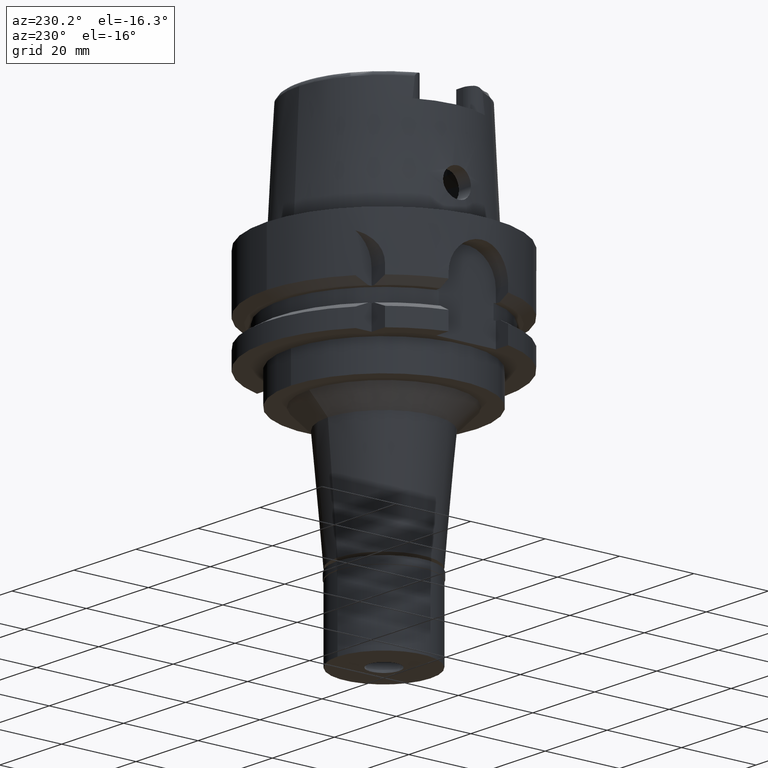
[diagram: clean part render]
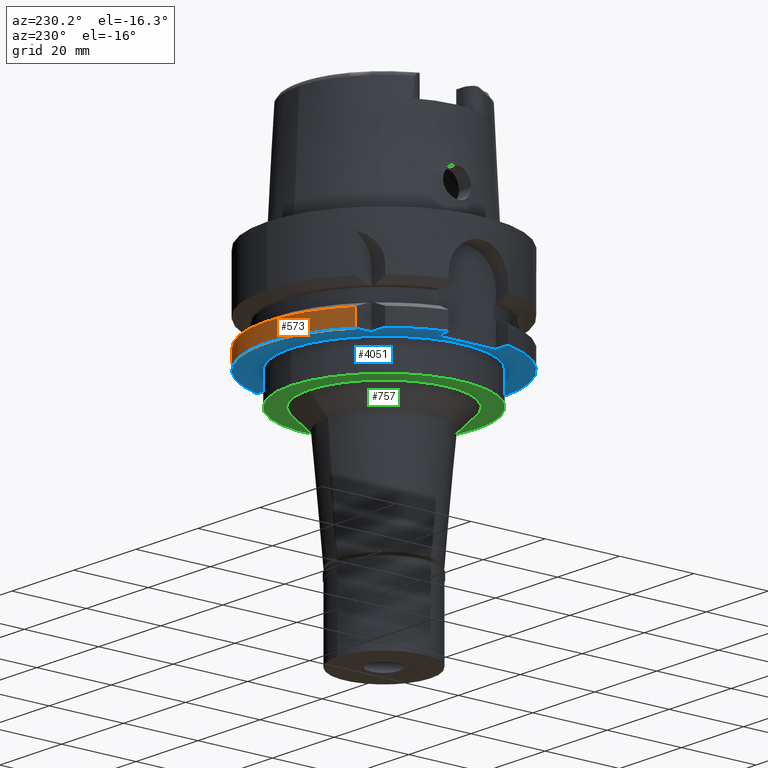
[diagram: same view with three faces highlighted in distinct colors, each labeled with its STEP entity id]
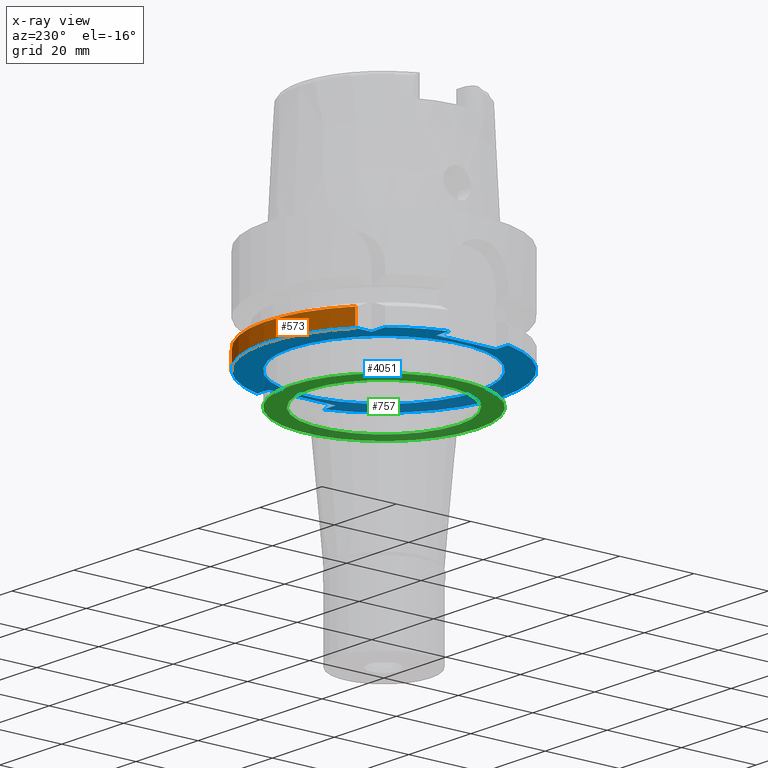
[diagram: x-ray of the same camera — body ghosted, the three highlighted faces saturated]
A machine part, auxiliary view with three faces highlighted in distinct colors.
The next image is the same camera in x-ray (body ghosted, the three faces saturated) — at least one of them is partly hidden behind the body in this view.
Their STEP definitions:

[orange] entity #573 — the highlighted cylindrical surface (partial cylindrical patch) has radius 31.5 mm, axis along (0, 0, 1).
#376 = AXIS2_PLACEMENT_3D ( 'NONE', #3801, #3368, #3426 ) ;
#381 = CYLINDRICAL_SURFACE ( 'NONE', #840, 31.50000000000000000 ) ;
#480 = VERTEX_POINT ( 'NONE', #1887 ) ;
#559 = AXIS2_PLACEMENT_3D ( 'NONE', #2870, #2449, #4980 ) ;
#573 = ADVANCED_FACE ( 'NONE', ( #1745 ), #381, .T. ) ;
#840 = AXIS2_PLACEMENT_3D ( 'NONE', #1269, #4766, #3886 ) ;
#843 = ORIENTED_EDGE ( 'NONE', *, *, #926, .F. ) ;
#878 = LINE ( 'NONE', #2596, #5137 ) ;
#926 = EDGE_CURVE ( 'NONE', #4171, #3962, #5320, .T. ) ;
#1202 = EDGE_CURVE ( 'NONE', #4171, #480, #5459, .T. ) ;
#1269 = CARTESIAN_POINT ( 'NONE',  ( 0.0000000000000000000, 0.0000000000000000000, 0.0000000000000000000 ) ) ;
#1343 = DIRECTION ( 'NONE',  ( -4.472268863052942936E-08, 1.500047548326979534E-07, 0.9999999999999876765 ) ) ;
#1367 = CARTESIAN_POINT ( 'NONE',  ( -20.00000000000000000, 24.33618704727999926, -26.00000000000000000 ) ) ;
#1627 = ORIENTED_EDGE ( 'NONE', *, *, #1202, .T. ) ;
#1693 = ORIENTED_EDGE ( 'NONE', *, *, #3546, .T. ) ;
#1745 = FACE_OUTER_BOUND ( 'NONE', #4511, .T. ) ;
#1887 = CARTESIAN_POINT ( 'NONE',  ( 30.18691748951999898, 9.000000693396000173, -21.37750466754000200 ) ) ;
#1898 = CARTESIAN_POINT ( 'NONE',  ( 30.18691769625000276, 9.000000000000000000, -26.00000000000000000 ) ) ;
#1977 = EDGE_CURVE ( 'NONE', #4406, #480, #878, .T. ) ;
#2449 = DIRECTION ( 'NONE',  ( 0.0000000000000000000, 0.0000000000000000000, -1.000000000000000000 ) ) ;
#2470 = CARTESIAN_POINT ( 'NONE',  ( -20.00000000000000000, 24.33618704727999926, -26.00000000000000000 ) ) ;
#2596 = CARTESIAN_POINT ( 'NONE',  ( 30.18691769625000276, 9.000000000000000000, -26.00000000000000000 ) ) ;
#2870 = CARTESIAN_POINT ( 'NONE',  ( 0.0000000000000000000, 0.0000000000000000000, -21.37749907476000288 ) ) ;
#3368 = DIRECTION ( 'NONE',  ( 0.0000000000000000000, 0.0000000000000000000, 1.000000000000000000 ) ) ;
#3426 = DIRECTION ( 'NONE',  ( 0.0000000000000000000, 1.000000000000000000, 0.0000000000000000000 ) ) ;
#3546 = EDGE_CURVE ( 'NONE', #4406, #3962, #3734, .T. ) ;
#3734 = CIRCLE ( 'NONE', #376, 31.50000000000000000 ) ;
#3801 = CARTESIAN_POINT ( 'NONE',  ( 0.0000000000000000000, 0.0000000000000000000, -26.00000000000000000 ) ) ;
#3886 = DIRECTION ( 'NONE',  ( 0.0000000000000000000, 1.000000000000000000, 0.0000000000000000000 ) ) ;
#3962 = VERTEX_POINT ( 'NONE', #2470 ) ;
#3984 = CARTESIAN_POINT ( 'NONE',  ( -20.00001377820999693, 24.33617572402999940, -21.37754845249999747 ) ) ;
#4171 = VERTEX_POINT ( 'NONE', #3984 ) ;
#4406 = VERTEX_POINT ( 'NONE', #1898 ) ;
#4453 = CARTESIAN_POINT ( 'NONE',  ( -20.00000000000000000, 24.33617949844698458, -22.91836563500000068 ) ) ;
#4511 = EDGE_LOOP ( 'NONE', ( #1627, #5393, #1693, #843 ) ) ;
#4766 = DIRECTION ( 'NONE',  ( 0.0000000000000000000, 0.0000000000000000000, 1.000000000000000000 ) ) ;
#4895 = CARTESIAN_POINT ( 'NONE',  ( -20.00001377820999693, 24.33617572402999940, -21.37754845249999747 ) ) ;
#4980 = DIRECTION ( 'NONE',  ( -0.6349206349206079070, 0.7725773665802099233, 0.0000000000000000000 ) ) ;
#5137 = VECTOR ( 'NONE', #1343, 1000.000000000000114 ) ;
#5317 = CARTESIAN_POINT ( 'NONE',  ( -20.00000000000000000, 24.33618327286396621, -24.45918281749999679 ) ) ;
#5320 = B_SPLINE_CURVE_WITH_KNOTS ( 'NONE', 3,
 ( #4895, #4453, #5317, #1367 ),
 .UNSPECIFIED., .F., .F.,
 ( 4, 4 ),
 ( 0.0000000000000000000, 1.000000000000000000 ),
 .UNSPECIFIED. ) ;
#5393 = ORIENTED_EDGE ( 'NONE', *, *, #1977, .F. ) ;
#5459 = CIRCLE ( 'NONE', #559, 31.50000000000000711 ) ;

[blue] entity #4051 — the highlighted planar face has unit normal (0, 0, 1).
#14 = VECTOR ( 'NONE', #2503, 1000.000000000000000 ) ;
#48 = CIRCLE ( 'NONE', #1769, 25.00000000000000000 ) ;
#63 = DIRECTION ( 'NONE',  ( 0.0000000000000000000, 0.0000000000000000000, 1.000000000000000000 ) ) ;
#96 = VERTEX_POINT ( 'NONE', #971 ) ;
#143 = LINE ( 'NONE', #3549, #4004 ) ;
#197 = AXIS2_PLACEMENT_3D ( 'NONE', #1415, #63, #4831 ) ;
#310 = CARTESIAN_POINT ( 'NONE',  ( 0.0000000000000000000, 0.0000000000000000000, -26.00000000000000000 ) ) ;
#339 = DIRECTION ( 'NONE',  ( 0.0000000000000000000, 1.000000000000000000, 0.0000000000000000000 ) ) ;
#347 = ORIENTED_EDGE ( 'NONE', *, *, #3546, .F. ) ;
#370 = LINE ( 'NONE', #2113, #576 ) ;
#376 = AXIS2_PLACEMENT_3D ( 'NONE', #3801, #3368, #3426 ) ;
#427 = DIRECTION ( 'NONE',  ( 0.0000000000000000000, 0.0000000000000000000, 1.000000000000000000 ) ) ;
#456 = CARTESIAN_POINT ( 'NONE',  ( -30.46719547316000032, 8.000000000000000000, -26.00000000000000000 ) ) ;
#511 = DIRECTION ( 'NONE',  ( 0.0000000000000000000, 0.0000000000000000000, 1.000000000000000000 ) ) ;
#526 = CARTESIAN_POINT ( 'NONE',  ( -26.50000000000000000, -8.000000000000000000, -26.00000000000000000 ) ) ;
#576 = VECTOR ( 'NONE', #5569, 1000.000000000000000 ) ;
#635 = VERTEX_POINT ( 'NONE', #2621 ) ;
#637 = CARTESIAN_POINT ( 'NONE',  ( -20.00000000000000000, 20.00000000000000000, -26.00000000000000000 ) ) ;
#717 = DIRECTION ( 'NONE',  ( 0.0000000000000000000, 0.0000000000000000000, -1.000000000000000000 ) ) ;
#720 = CARTESIAN_POINT ( 'NONE',  ( -26.50000000000000000, 8.000000000000000000, -26.00000000000000000 ) ) ;
#730 = LINE ( 'NONE', #818, #1594 ) ;
#747 = LINE ( 'NONE', #720, #14 ) ;
#792 = EDGE_CURVE ( 'NONE', #635, #4406, #143, .T. ) ;
#805 = DIRECTION ( 'NONE',  ( 0.0000000000000000000, -1.000000000000000000, 0.0000000000000000000 ) ) ;
#817 = DIRECTION ( 'NONE',  ( -1.000000000000000000, -8.686570378870999660E-14, 0.0000000000000000000 ) ) ;
#818 = CARTESIAN_POINT ( 'NONE',  ( -26.50000000000000000, -8.000000000000000000, -26.00000000000000000 ) ) ;
#894 = PLANE ( 'NONE',  #2642 ) ;
#917 = DIRECTION ( 'NONE',  ( 1.000000000000000000, 0.0000000000000000000, 0.0000000000000000000 ) ) ;
#971 = CARTESIAN_POINT ( 'NONE',  ( 0.0000000000000000000, 25.00000000000000000, -26.00000000000000000 ) ) ;
#1056 = EDGE_CURVE ( 'NONE', #3159, #4622, #3787, .T. ) ;
#1094 = LINE ( 'NONE', #637, #3121 ) ;
#1154 = DIRECTION ( 'NONE',  ( 1.000000000000000000, 6.889739586341000002E-14, 0.0000000000000000000 ) ) ;
#1313 = LINE ( 'NONE', #3571, #4798 ) ;
#1415 = CARTESIAN_POINT ( 'NONE',  ( 0.0000000000000000000, 0.0000000000000000000, -26.00000000000000000 ) ) ;
#1429 = EDGE_LOOP ( 'NONE', ( #5458, #3660 ) ) ;
#1451 = VECTOR ( 'NONE', #1154, 1000.000000000000000 ) ;
#1594 = VECTOR ( 'NONE', #5524, 1000.000000000000000 ) ;
#1653 = CIRCLE ( 'NONE', #197, 31.50000000000000711 ) ;
#1769 = AXIS2_PLACEMENT_3D ( 'NONE', #3101, #3908, #3072 ) ;
#1796 = EDGE_CURVE ( 'NONE', #4847, #3568, #730, .T. ) ;
#1898 = CARTESIAN_POINT ( 'NONE',  ( 30.18691769625000276, 9.000000000000000000, -26.00000000000000000 ) ) ;
#1998 = ORIENTED_EDGE ( 'NONE', *, *, #792, .F. ) ;
#2000 = CARTESIAN_POINT ( 'NONE',  ( 26.50000000000000000, -9.000000000000000000, -26.00000000000000000 ) ) ;
#2032 = LINE ( 'NONE', #2064, #2753 ) ;
#2064 = CARTESIAN_POINT ( 'NONE',  ( -26.50000000000000000, -8.000000000000000000, -26.00000000000000000 ) ) ;
#2085 = CARTESIAN_POINT ( 'NONE',  ( -20.00000000000000000, 20.00000000000000000, -26.00000000000000000 ) ) ;
#2113 = CARTESIAN_POINT ( 'NONE',  ( 26.50000000000000000, -9.000000000000000000, -26.00000000000000000 ) ) ;
#2193 = FACE_OUTER_BOUND ( 'NONE', #3921, .T. ) ;
#2261 = ORIENTED_EDGE ( 'NONE', *, *, #4085, .F. ) ;
#2312 = VERTEX_POINT ( 'NONE', #456 ) ;
#2353 = VERTEX_POINT ( 'NONE', #4096 ) ;
#2470 = CARTESIAN_POINT ( 'NONE',  ( -20.00000000000000000, 24.33618704727999926, -26.00000000000000000 ) ) ;
#2503 = DIRECTION ( 'NONE',  ( -1.000000000000000000, 8.776122650817999518E-14, 0.0000000000000000000 ) ) ;
#2510 = VERTEX_POINT ( 'NONE', #4126 ) ;
#2516 = EDGE_CURVE ( 'NONE', #96, #2510, #5397, .T. ) ;
#2621 = CARTESIAN_POINT ( 'NONE',  ( 26.50000000000000000, 9.000000000000000000, -26.00000000000000000 ) ) ;
#2642 = AXIS2_PLACEMENT_3D ( 'NONE', #3517, #511, #917 ) ;
#2662 = ORIENTED_EDGE ( 'NONE', *, *, #3042, .T. ) ;
#2728 = DIRECTION ( 'NONE',  ( 1.556703139445999911E-13, 1.000000000000000000, 0.0000000000000000000 ) ) ;
#2753 = VECTOR ( 'NONE', #817, 1000.000000000000000 ) ;
#2857 = CARTESIAN_POINT ( 'NONE',  ( -30.46719547316000032, -8.000000000000000000, -26.00000000000000000 ) ) ;
#2989 = EDGE_CURVE ( 'NONE', #3159, #635, #370, .T. ) ;
#3042 = EDGE_CURVE ( 'NONE', #3568, #2312, #747, .T. ) ;
#3072 = DIRECTION ( 'NONE',  ( 0.0000000000000000000, -1.000000000000000000, 0.0000000000000000000 ) ) ;
#3101 = CARTESIAN_POINT ( 'NONE',  ( 0.0000000000000000000, 0.0000000000000000000, -26.00000000000000000 ) ) ;
#3118 = DIRECTION ( 'NONE',  ( -1.000000000000000000, -1.540316790609000194E-13, 0.0000000000000000000 ) ) ;
#3121 = VECTOR ( 'NONE', #2728, 1000.000000000000000 ) ;
#3134 = VERTEX_POINT ( 'NONE', #2085 ) ;
#3159 = VERTEX_POINT ( 'NONE', #3750 ) ;
#3241 = ORIENTED_EDGE ( 'NONE', *, *, #4136, .F. ) ;
#3248 = ORIENTED_EDGE ( 'NONE', *, *, #5609, .F. ) ;
#3368 = DIRECTION ( 'NONE',  ( 0.0000000000000000000, 0.0000000000000000000, 1.000000000000000000 ) ) ;
#3426 = DIRECTION ( 'NONE',  ( 0.0000000000000000000, 1.000000000000000000, 0.0000000000000000000 ) ) ;
#3517 = CARTESIAN_POINT ( 'NONE',  ( 0.0000000000000000000, 0.0000000000000000000, -26.00000000000000000 ) ) ;
#3546 = EDGE_CURVE ( 'NONE', #4406, #3962, #3734, .T. ) ;
#3549 = CARTESIAN_POINT ( 'NONE',  ( 26.50000000000000000, 9.000000000000000000, -26.00000000000000000 ) ) ;
#3568 = VERTEX_POINT ( 'NONE', #3916 ) ;
#3571 = CARTESIAN_POINT ( 'NONE',  ( -20.00000000000000000, 20.00000000000000000, -26.00000000000000000 ) ) ;
#3608 = DIRECTION ( 'NONE',  ( 1.000000000000000000, -7.275179563199999529E-14, 0.0000000000000000000 ) ) ;
#3660 = ORIENTED_EDGE ( 'NONE', *, *, #5212, .F. ) ;
#3723 = ORIENTED_EDGE ( 'NONE', *, *, #1056, .T. ) ;
#3734 = CIRCLE ( 'NONE', #376, 31.50000000000000000 ) ;
#3750 = CARTESIAN_POINT ( 'NONE',  ( 26.50000000000000000, -9.000000000000000000, -26.00000000000000000 ) ) ;
#3786 = ORIENTED_EDGE ( 'NONE', *, *, #1796, .T. ) ;
#3787 = LINE ( 'NONE', #2000, #1451 ) ;
#3801 = CARTESIAN_POINT ( 'NONE',  ( 0.0000000000000000000, 0.0000000000000000000, -26.00000000000000000 ) ) ;
#3892 = ORIENTED_EDGE ( 'NONE', *, *, #4708, .F. ) ;
#3908 = DIRECTION ( 'NONE',  ( 0.0000000000000000000, 0.0000000000000000000, -1.000000000000000000 ) ) ;
#3916 = CARTESIAN_POINT ( 'NONE',  ( -26.50000000000000000, 8.000000000000000000, -26.00000000000000000 ) ) ;
#3921 = EDGE_LOOP ( 'NONE', ( #347, #1998, #4355, #3723, #3892, #3248, #3786, #2662, #2261, #3241, #5323 ) ) ;
#3962 = VERTEX_POINT ( 'NONE', #2470 ) ;
#4004 = VECTOR ( 'NONE', #3608, 1000.000000000000000 ) ;
#4051 = ADVANCED_FACE ( 'NONE', ( #2193, #5202 ), #894, .F. ) ;
#4085 = EDGE_CURVE ( 'NONE', #2353, #2312, #1653, .T. ) ;
#4096 = CARTESIAN_POINT ( 'NONE',  ( -24.33618704727999926, 20.00000000000000000, -26.00000000000000000 ) ) ;
#4126 = CARTESIAN_POINT ( 'NONE',  ( 0.0000000000000000000, -25.00000000000000000, -26.00000000000000000 ) ) ;
#4136 = EDGE_CURVE ( 'NONE', #3134, #2353, #1313, .T. ) ;
#4231 = AXIS2_PLACEMENT_3D ( 'NONE', #4702, #427, #805 ) ;
#4355 = ORIENTED_EDGE ( 'NONE', *, *, #2989, .F. ) ;
#4406 = VERTEX_POINT ( 'NONE', #1898 ) ;
#4508 = AXIS2_PLACEMENT_3D ( 'NONE', #310, #717, #339 ) ;
#4612 = CARTESIAN_POINT ( 'NONE',  ( 30.18691769625000276, -9.000000000000000000, -26.00000000000000000 ) ) ;
#4622 = VERTEX_POINT ( 'NONE', #4612 ) ;
#4670 = VERTEX_POINT ( 'NONE', #2857 ) ;
#4702 = CARTESIAN_POINT ( 'NONE',  ( 0.0000000000000000000, 0.0000000000000000000, -26.00000000000000000 ) ) ;
#4708 = EDGE_CURVE ( 'NONE', #4670, #4622, #5575, .T. ) ;
#4798 = VECTOR ( 'NONE', #3118, 1000.000000000000000 ) ;
#4831 = DIRECTION ( 'NONE',  ( -0.7725773665802099233, 0.6349206349206079070, 0.0000000000000000000 ) ) ;
#4847 = VERTEX_POINT ( 'NONE', #526 ) ;
#5202 = FACE_BOUND ( 'NONE', #1429, .T. ) ;
#5212 = EDGE_CURVE ( 'NONE', #2510, #96, #48, .T. ) ;
#5323 = ORIENTED_EDGE ( 'NONE', *, *, #5468, .T. ) ;
#5397 = CIRCLE ( 'NONE', #4508, 25.00000000000000000 ) ;
#5458 = ORIENTED_EDGE ( 'NONE', *, *, #2516, .F. ) ;
#5468 = EDGE_CURVE ( 'NONE', #3134, #3962, #1094, .T. ) ;
#5524 = DIRECTION ( 'NONE',  ( 0.0000000000000000000, 1.000000000000000000, 0.0000000000000000000 ) ) ;
#5569 = DIRECTION ( 'NONE',  ( 0.0000000000000000000, 1.000000000000000000, 0.0000000000000000000 ) ) ;
#5575 = CIRCLE ( 'NONE', #4231, 31.50000000000000000 ) ;
#5609 = EDGE_CURVE ( 'NONE', #4847, #4670, #2032, .T. ) ;

[green] entity #757 — the highlighted planar face has unit normal (0, 0, 1).
#9 = FACE_OUTER_BOUND ( 'NONE', #3954, .T. ) ;
#119 = CARTESIAN_POINT ( 'NONE',  ( 0.0000000000000000000, 0.0000000000000000000, -34.00000000000000000 ) ) ;
#203 = DIRECTION ( 'NONE',  ( 0.0000000000000000000, 0.0000000000000000000, -1.000000000000000000 ) ) ;
#545 = PLANE ( 'NONE',  #3359 ) ;
#757 = ADVANCED_FACE ( 'NONE', ( #9, #3152 ), #545, .F. ) ;
#930 = CIRCLE ( 'NONE', #5196, 25.00000000000000000 ) ;
#1004 = VERTEX_POINT ( 'NONE', #4230 ) ;
#1090 = ORIENTED_EDGE ( 'NONE', *, *, #4646, .F. ) ;
#1147 = ORIENTED_EDGE ( 'NONE', *, *, #1540, .F. ) ;
#1237 = VERTEX_POINT ( 'NONE', #2091 ) ;
#1422 = EDGE_LOOP ( 'NONE', ( #1090, #2933 ) ) ;
#1510 = DIRECTION ( 'NONE',  ( 0.0000000000000000000, 1.000000000000000000, 0.0000000000000000000 ) ) ;
#1540 = EDGE_CURVE ( 'NONE', #4926, #1004, #930, .T. ) ;
#1586 = DIRECTION ( 'NONE',  ( 0.0000000000000000000, 0.0000000000000000000, -1.000000000000000000 ) ) ;
#1651 = EDGE_CURVE ( 'NONE', #4970, #1237, #4298, .T. ) ;
#1726 = EDGE_CURVE ( 'NONE', #1004, #4926, #4211, .T. ) ;
#1830 = AXIS2_PLACEMENT_3D ( 'NONE', #5014, #203, #1944 ) ;
#1944 = DIRECTION ( 'NONE',  ( 0.0000000000000000000, -1.000000000000000000, 0.0000000000000000000 ) ) ;
#1979 = DIRECTION ( 'NONE',  ( 0.0000000000000000000, 0.0000000000000000000, 1.000000000000000000 ) ) ;
#2091 = CARTESIAN_POINT ( 'NONE',  ( 0.0000000000000000000, 20.09841330671999771, -34.00000000000000000 ) ) ;
#2479 = DIRECTION ( 'NONE',  ( 0.0000000000000000000, 0.0000000000000000000, 1.000000000000000000 ) ) ;
#2488 = AXIS2_PLACEMENT_3D ( 'NONE', #4586, #1586, #3318 ) ;
#2788 = CARTESIAN_POINT ( 'NONE',  ( 0.0000000000000000000, -20.09841330671999771, -34.00000000000000000 ) ) ;
#2933 = ORIENTED_EDGE ( 'NONE', *, *, #1651, .F. ) ;
#3152 = FACE_BOUND ( 'NONE', #1422, .T. ) ;
#3177 = CARTESIAN_POINT ( 'NONE',  ( 0.0000000000000000000, 0.0000000000000000000, -34.00000000000000000 ) ) ;
#3318 = DIRECTION ( 'NONE',  ( 0.0000000000000000000, 1.000000000000000000, 0.0000000000000000000 ) ) ;
#3356 = CARTESIAN_POINT ( 'NONE',  ( 0.0000000000000000000, 0.0000000000000000000, -34.00000000000000000 ) ) ;
#3359 = AXIS2_PLACEMENT_3D ( 'NONE', #3177, #4922, #5344 ) ;
#3616 = CARTESIAN_POINT ( 'NONE',  ( 0.0000000000000000000, 25.00000000000000000, -34.00000000000000000 ) ) ;
#3728 = DIRECTION ( 'NONE',  ( 0.0000000000000000000, -1.000000000000000000, 0.0000000000000000000 ) ) ;
#3954 = EDGE_LOOP ( 'NONE', ( #1147, #4984 ) ) ;
#4013 = AXIS2_PLACEMENT_3D ( 'NONE', #3356, #2479, #3728 ) ;
#4211 = CIRCLE ( 'NONE', #4013, 25.00000000000000000 ) ;
#4230 = CARTESIAN_POINT ( 'NONE',  ( 0.0000000000000000000, -25.00000000000000000, -34.00000000000000000 ) ) ;
#4298 = CIRCLE ( 'NONE', #1830, 20.09841330671999771 ) ;
#4586 = CARTESIAN_POINT ( 'NONE',  ( 0.0000000000000000000, 0.0000000000000000000, -34.00000000000000000 ) ) ;
#4646 = EDGE_CURVE ( 'NONE', #1237, #4970, #5214, .T. ) ;
#4922 = DIRECTION ( 'NONE',  ( 0.0000000000000000000, 0.0000000000000000000, 1.000000000000000000 ) ) ;
#4926 = VERTEX_POINT ( 'NONE', #3616 ) ;
#4970 = VERTEX_POINT ( 'NONE', #2788 ) ;
#4984 = ORIENTED_EDGE ( 'NONE', *, *, #1726, .F. ) ;
#5014 = CARTESIAN_POINT ( 'NONE',  ( 0.0000000000000000000, 0.0000000000000000000, -34.00000000000000000 ) ) ;
#5196 = AXIS2_PLACEMENT_3D ( 'NONE', #119, #1979, #1510 ) ;
#5214 = CIRCLE ( 'NONE', #2488, 20.09841330671999771 ) ;
#5344 = DIRECTION ( 'NONE',  ( 1.000000000000000000, 0.0000000000000000000, 0.0000000000000000000 ) ) ;